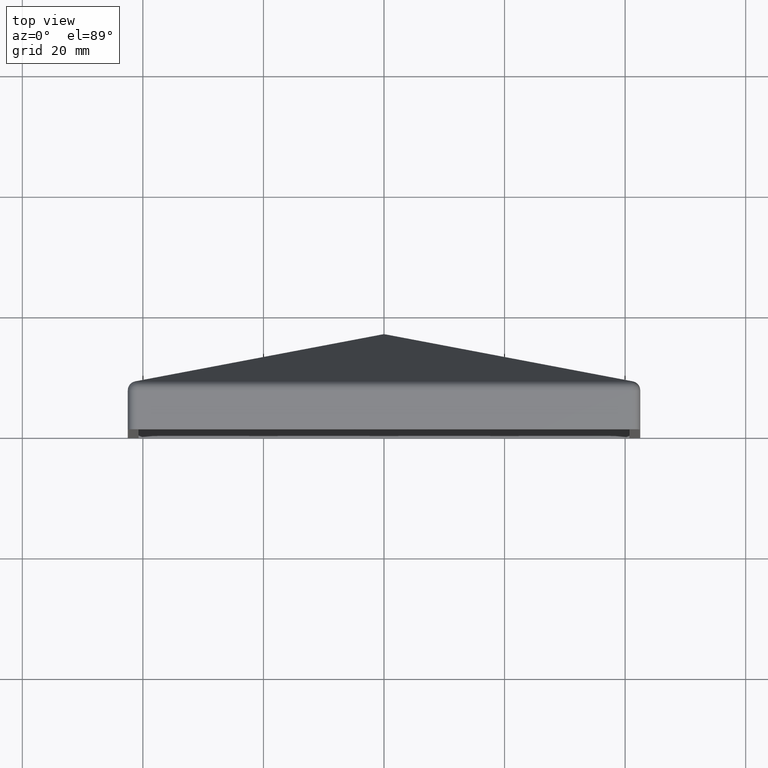
[diagram: clean part render]
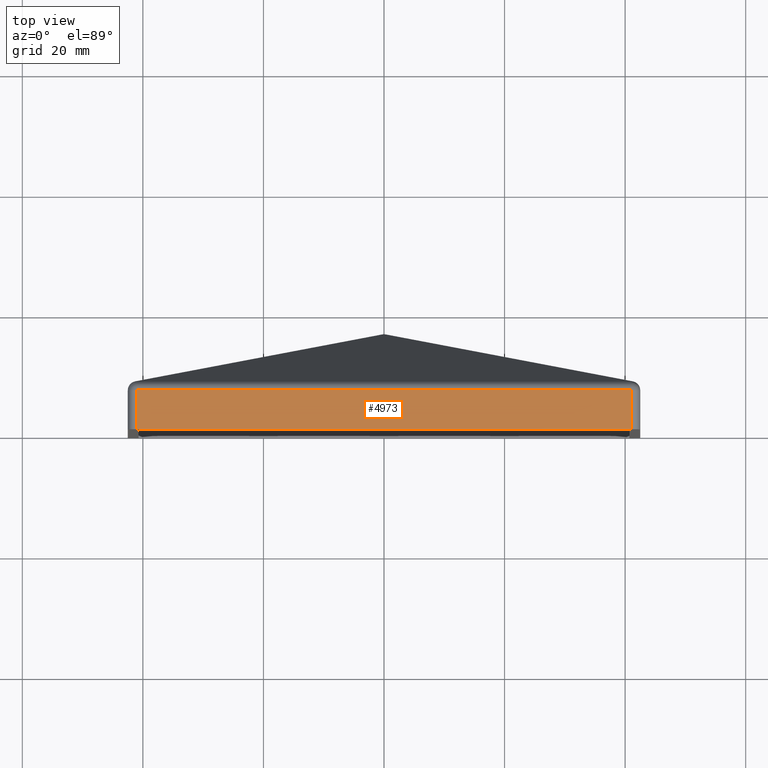
[diagram: same view with one face highlighted and labeled with its STEP entity id]
A machine part, top view. The second image highlights one B-rep face of the part: STEP entity #4973.
In plain terms, the highlighted planar face has unit normal (0, 0, -1).
Its self-contained STEP definition (entity closure, byte-faithful):
#433 = FACE_OUTER_BOUND ( 'NONE', #10653, .T. ) ;
#660 = DIRECTION ( 'NONE',  ( -1.000000000000000000, -0.0000000000000000000, 2.220446049250313100E-016 ) ) ;
#1036 = DIRECTION ( 'NONE',  ( 0.0000000000000000000, -1.000000000000000000, 0.0000000000000000000 ) ) ;
#1182 = VECTOR ( 'NONE', #6918, 1000.000000000000000 ) ;
#1696 = CARTESIAN_POINT ( 'NONE',  ( 42.50000000000002800, 6.500000000000000000, 42.50000000000000000 ) ) ;
#2236 = CARTESIAN_POINT ( 'NONE',  ( -41.00000000000000000, 6.500000000000000000, 42.50000000000002100 ) ) ;
#2448 = EDGE_CURVE ( 'NONE', #4110, #7817, #2567, .T. ) ;
#2477 = PLANE ( 'NONE',  #7744 ) ;
#2567 = LINE ( 'NONE', #1696, #10639 ) ;
#3189 = EDGE_CURVE ( 'NONE', #5057, #4110, #9367, .T. ) ;
#3677 = ORIENTED_EDGE ( 'NONE', *, *, #4114, .T. ) ;
#3697 = LINE ( 'NONE', #9016, #7020 ) ;
#4110 = VERTEX_POINT ( 'NONE', #7741 ) ;
#4114 = EDGE_CURVE ( 'NONE', #10875, #5057, #4336, .T. ) ;
#4336 = LINE ( 'NONE', #6039, #1182 ) ;
#4779 = ORIENTED_EDGE ( 'NONE', *, *, #3189, .T. ) ;
#4834 = DIRECTION ( 'NONE',  ( -0.0000000000000000000, 1.000000000000000000, -0.0000000000000000000 ) ) ;
#4973 = ADVANCED_FACE ( 'NONE', ( #433 ), #2477, .F. ) ;
#5057 = VERTEX_POINT ( 'NONE', #10836 ) ;
#5962 = DIRECTION ( 'NONE',  ( -1.000000000000000000, 0.0000000000000000000, -0.0000000000000000000 ) ) ;
#6039 = CARTESIAN_POINT ( 'NONE',  ( -42.50000000000000000, 0.0000000000000000000, 42.50000000000000000 ) ) ;
#6918 = DIRECTION ( 'NONE',  ( 1.000000000000000000, 0.0000000000000000000, 0.0000000000000000000 ) ) ;
#6956 = CARTESIAN_POINT ( 'NONE',  ( -41.00000000000000000, 0.0000000000000000000, 42.50000000000000000 ) ) ;
#7020 = VECTOR ( 'NONE', #1036, 1000.000000000000000 ) ;
#7741 = CARTESIAN_POINT ( 'NONE',  ( 41.00000000000000000, 6.500000000000000000, 42.50000000000000000 ) ) ;
#7744 = AXIS2_PLACEMENT_3D ( 'NONE', #11296, #8724, #5962 ) ;
#7817 = VERTEX_POINT ( 'NONE', #2236 ) ;
#8724 = DIRECTION ( 'NONE',  ( 0.0000000000000000000, 0.0000000000000000000, -1.000000000000000000 ) ) ;
#9016 = CARTESIAN_POINT ( 'NONE',  ( -41.00000000000000000, 16.50000000000000000, 42.50000000000000000 ) ) ;
#9367 = LINE ( 'NONE', #11042, #11174 ) ;
#10256 = EDGE_CURVE ( 'NONE', #7817, #10875, #3697, .T. ) ;
#10639 = VECTOR ( 'NONE', #660, 1000.000000000000000 ) ;
#10653 = EDGE_LOOP ( 'NONE', ( #11438, #11338, #3677, #4779 ) ) ;
#10836 = CARTESIAN_POINT ( 'NONE',  ( 41.00000000000000000, 0.0000000000000000000, 42.50000000000000000 ) ) ;
#10875 = VERTEX_POINT ( 'NONE', #6956 ) ;
#11042 = CARTESIAN_POINT ( 'NONE',  ( 41.00000000000000000, 16.50000000000000000, 42.50000000000000000 ) ) ;
#11174 = VECTOR ( 'NONE', #4834, 1000.000000000000000 ) ;
#11296 = CARTESIAN_POINT ( 'NONE',  ( -42.50000000000000000, 16.50000000000000000, 42.50000000000000000 ) ) ;
#11338 = ORIENTED_EDGE ( 'NONE', *, *, #10256, .T. ) ;
#11438 = ORIENTED_EDGE ( 'NONE', *, *, #2448, .T. ) ;